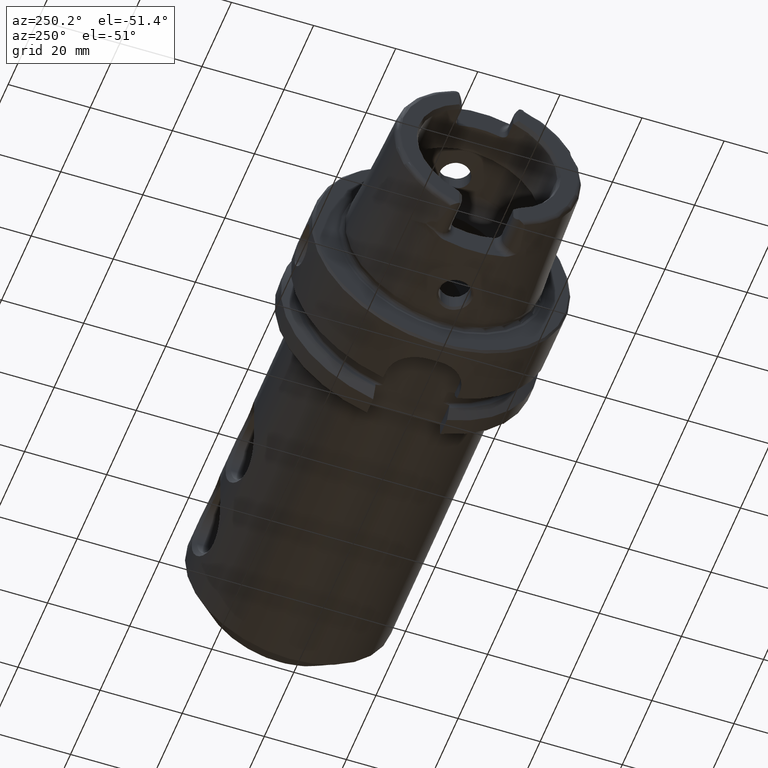
[diagram: clean part render]
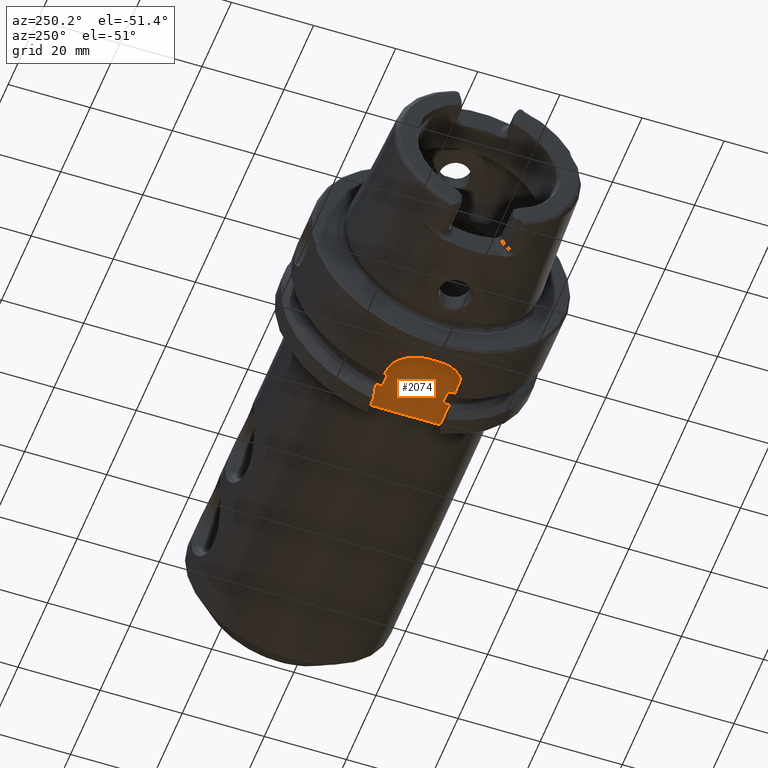
[diagram: same view with one face highlighted and labeled with its STEP entity id]
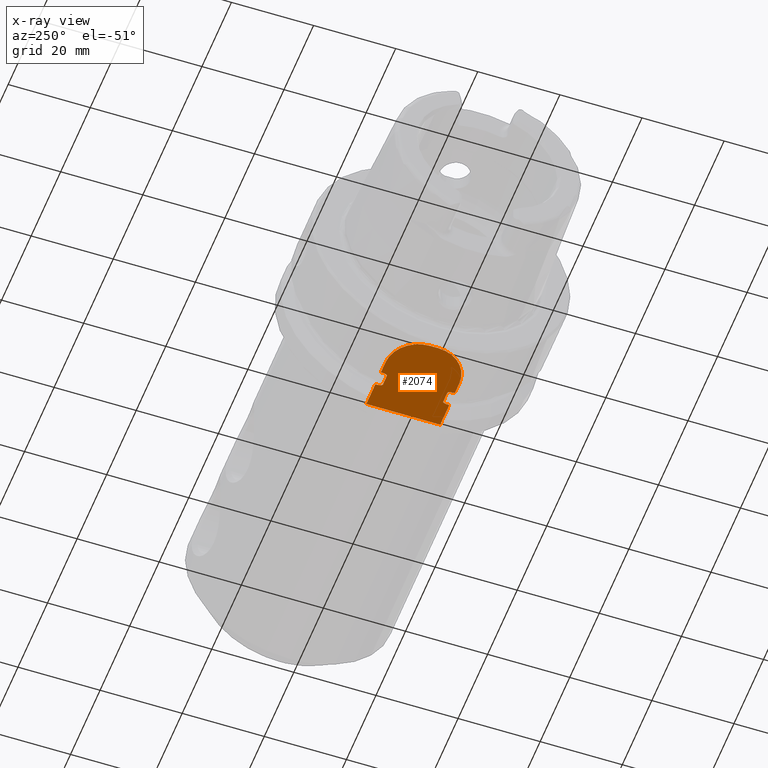
[diagram: x-ray of the same camera — body ghosted, the highlighted face saturated]
A machine part, auxiliary view. The second image highlights one B-rep face of the part: STEP entity #2074.
The next image is the same camera in x-ray: the body ghosted, the highlighted face saturated — about 0% of this face is hidden behind the body in this view.
In plain terms, the highlighted planar face has unit normal (0, 0, 1).
Its self-contained STEP definition (entity closure, byte-faithful):
#49=PLANE('',#2278);
#154=B_SPLINE_CURVE_WITH_KNOTS('',3,(#4488,#4489,#4490,#4491,#4492,#4493,
#4494,#4495,#4496,#4497),.UNSPECIFIED.,.F.,.F.,(4,2,2,2,4),(0.15835931245442,
0.289228035148658,0.316691561230897,0.323545183976989,0.328785692776271),
 .UNSPECIFIED.);
#155=B_SPLINE_CURVE_WITH_KNOTS('',3,(#4509,#4510,#4511,#4512,#4513,#4514,
#4515,#4516,#4517,#4518),.UNSPECIFIED.,.F.,.F.,(4,2,2,2,4),(0.328785692776271,
0.334026201575553,0.340879824321645,0.368343350403884,0.499212073098123),
 .UNSPECIFIED.);
#156=B_SPLINE_CURVE_WITH_KNOTS('',3,(#4521,#4522,#4523,#4524,#4525,#4526,
#4527,#4528,#4529,#4530),.UNSPECIFIED.,.F.,.F.,(4,2,2,2,4),(0.15835931245442,
0.289228035148658,0.316691561230897,0.323545183976988,0.32878569277627),
 .UNSPECIFIED.);
#157=B_SPLINE_CURVE_WITH_KNOTS('',3,(#4533,#4534,#4535,#4536,#4537,#4538,
#4539,#4540,#4541,#4542),.UNSPECIFIED.,.F.,.F.,(4,2,2,2,4),(0.32878569277627,
0.334026201575552,0.340879824321644,0.368343350403882,0.49921207309812),
 .UNSPECIFIED.);
#279=FACE_OUTER_BOUND('',#411,.T.);
#411=EDGE_LOOP('',(#1642,#1643,#1644,#1645,#1646,#1647,#1648,#1649,#1650,
#1651,#1652,#1653,#1654,#1655));
#546=LINE('',#4437,#658);
#550=LINE('',#4472,#662);
#553=LINE('',#4499,#665);
#554=LINE('',#4503,#666);
#555=LINE('',#4507,#667);
#556=LINE('',#4520,#668);
#557=LINE('',#4531,#669);
#558=LINE('',#4543,#670);
#658=VECTOR('',#2697,10.);
#662=VECTOR('',#2703,10.);
#665=VECTOR('',#2708,10.);
#666=VECTOR('',#2711,10.);
#667=VECTOR('',#2714,10.);
#668=VECTOR('',#2715,10.);
#669=VECTOR('',#2716,10.);
#670=VECTOR('',#2717,10.);
#764=CIRCLE('',#2279,8.);
#765=CIRCLE('',#2280,8.);
#958=VERTEX_POINT('',#4431);
#959=VERTEX_POINT('',#4436);
#965=VERTEX_POINT('',#4469);
#966=VERTEX_POINT('',#4471);
#970=VERTEX_POINT('',#4486);
#971=VERTEX_POINT('',#4487);
#972=VERTEX_POINT('',#4498);
#973=VERTEX_POINT('',#4500);
#974=VERTEX_POINT('',#4502);
#975=VERTEX_POINT('',#4504);
#976=VERTEX_POINT('',#4506);
#977=VERTEX_POINT('',#4508);
#978=VERTEX_POINT('',#4519);
#979=VERTEX_POINT('',#4532);
#1213=EDGE_CURVE('',#958,#959,#546,.T.);
#1220=EDGE_CURVE('',#965,#966,#550,.T.);
#1225=EDGE_CURVE('',#970,#971,#154,.T.);
#1226=EDGE_CURVE('',#972,#970,#553,.T.);
#1227=EDGE_CURVE('',#973,#972,#764,.T.);
#1228=EDGE_CURVE('',#974,#973,#554,.T.);
#1229=EDGE_CURVE('',#975,#974,#765,.T.);
#1230=EDGE_CURVE('',#976,#975,#555,.T.);
#1231=EDGE_CURVE('',#977,#976,#155,.T.);
#1232=EDGE_CURVE('',#978,#977,#556,.T.);
#1233=EDGE_CURVE('',#966,#978,#156,.T.);
#1234=EDGE_CURVE('',#959,#965,#557,.T.);
#1235=EDGE_CURVE('',#979,#958,#157,.T.);
#1236=EDGE_CURVE('',#971,#979,#558,.T.);
#1642=ORIENTED_EDGE('',*,*,#1225,.F.);
#1643=ORIENTED_EDGE('',*,*,#1226,.F.);
#1644=ORIENTED_EDGE('',*,*,#1227,.F.);
#1645=ORIENTED_EDGE('',*,*,#1228,.F.);
#1646=ORIENTED_EDGE('',*,*,#1229,.F.);
#1647=ORIENTED_EDGE('',*,*,#1230,.F.);
#1648=ORIENTED_EDGE('',*,*,#1231,.F.);
#1649=ORIENTED_EDGE('',*,*,#1232,.F.);
#1650=ORIENTED_EDGE('',*,*,#1233,.F.);
#1651=ORIENTED_EDGE('',*,*,#1220,.F.);
#1652=ORIENTED_EDGE('',*,*,#1234,.F.);
#1653=ORIENTED_EDGE('',*,*,#1213,.F.);
#1654=ORIENTED_EDGE('',*,*,#1235,.F.);
#1655=ORIENTED_EDGE('',*,*,#1236,.F.);
#2074=ADVANCED_FACE('',(#279),#49,.F.);
#2278=AXIS2_PLACEMENT_3D('',#4485,#2706,#2707);
#2279=AXIS2_PLACEMENT_3D('',#4501,#2709,#2710);
#2280=AXIS2_PLACEMENT_3D('',#4505,#2712,#2713);
#2697=DIRECTION('',(1.,-2.56205313375036E-16,0.));
#2703=DIRECTION('',(-1.,2.56205313375036E-16,0.));
#2706=DIRECTION('center_axis',(0.,0.,1.));
#2707=DIRECTION('ref_axis',(1.,0.,0.));
#2708=DIRECTION('',(1.,-2.56205313375036E-16,0.));
#2709=DIRECTION('center_axis',(0.,0.,1.));
#2710=DIRECTION('ref_axis',(-1.,-2.42861286636753E-16,0.));
#2711=DIRECTION('',(0.,-1.,0.));
#2712=DIRECTION('center_axis',(0.,0.,1.));
#2713=DIRECTION('ref_axis',(0.,1.,0.));
#2714=DIRECTION('',(-1.,2.56205313375036E-16,0.));
#2715=DIRECTION('',(-1.,0.,0.));
#2716=DIRECTION('',(0.,1.,0.));
#2717=DIRECTION('',(1.,0.,0.));
#4431=CARTESIAN_POINT('',(19.8748205133158,-9.,-26.5));
#4436=CARTESIAN_POINT('',(26.,-9.,-26.5));
#4437=CARTESIAN_POINT('',(13.,-9.,-26.5));
#4469=CARTESIAN_POINT('',(26.,9.,-26.5));
#4471=CARTESIAN_POINT('',(19.8748205133158,9.,-26.5));
#4472=CARTESIAN_POINT('',(26.,9.,-26.5));
#4485=CARTESIAN_POINT('Origin',(15.5,3.88578058618805E-15,-26.5));
#4486=CARTESIAN_POINT('',(16.1251794866842,-9.,-26.5));
#4487=CARTESIAN_POINT('',(16.625,-7.34846922834952,-26.5));
#4488=CARTESIAN_POINT('Ctrl Pts',(16.1251794866842,-9.,-26.5));
#4489=CARTESIAN_POINT('Ctrl Pts',(16.12898241235,-8.55877260788573,-26.5));
#4490=CARTESIAN_POINT('Ctrl Pts',(16.1819334034884,-8.04136347440828,-26.5));
#4491=CARTESIAN_POINT('Ctrl Pts',(16.3906456489289,-7.5566112023157,-26.5));
#4492=CARTESIAN_POINT('Ctrl Pts',(16.4411490019356,-7.4590543697872,-26.5));
#4493=CARTESIAN_POINT('Ctrl Pts',(16.5270295504762,-7.38349170057081,-26.5));
#4494=CARTESIAN_POINT('Ctrl Pts',(16.5496994821687,-7.36807649661538,-26.5));
#4495=CARTESIAN_POINT('Ctrl Pts',(16.587038394856,-7.35287762173868,-26.5));
#4496=CARTESIAN_POINT('Ctrl Pts',(16.6075316373357,-7.34846922834952,-26.5));
#4497=CARTESIAN_POINT('Ctrl Pts',(16.625,-7.34846922834952,-26.5));
#4498=CARTESIAN_POINT('',(13.,-9.,-26.5));
#4499=CARTESIAN_POINT('',(13.,-9.,-26.5));
#4500=CARTESIAN_POINT('',(5.,-0.999999999999999,-26.5));
#4501=CARTESIAN_POINT('Origin',(13.,-0.999999999999997,-26.5));
#4502=CARTESIAN_POINT('',(5.,1.,-26.5));
#4503=CARTESIAN_POINT('',(5.,1.,-26.5));
#4504=CARTESIAN_POINT('',(13.,9.00000000000001,-26.5));
#4505=CARTESIAN_POINT('Origin',(13.,1.,-26.5));
#4506=CARTESIAN_POINT('',(16.1251794866842,9.,-26.5));
#4507=CARTESIAN_POINT('',(26.,9.,-26.5));
#4508=CARTESIAN_POINT('',(16.625,7.34846922834952,-26.5));
#4509=CARTESIAN_POINT('Ctrl Pts',(16.625,7.34846922834952,-26.5));
#4510=CARTESIAN_POINT('Ctrl Pts',(16.6075316373357,7.34846922834952,-26.5));
#4511=CARTESIAN_POINT('Ctrl Pts',(16.587038394856,7.35287762173868,-26.5));
#4512=CARTESIAN_POINT('Ctrl Pts',(16.5496994821687,7.36807649661538,-26.5));
#4513=CARTESIAN_POINT('Ctrl Pts',(16.5270295504762,7.38349170057081,-26.5));
#4514=CARTESIAN_POINT('Ctrl Pts',(16.4411490019356,7.4590543697872,-26.5));
#4515=CARTESIAN_POINT('Ctrl Pts',(16.3906456489289,7.5566112023157,-26.5));
#4516=CARTESIAN_POINT('Ctrl Pts',(16.1819334034884,8.04136347440828,-26.5));
#4517=CARTESIAN_POINT('Ctrl Pts',(16.12898241235,8.55877260788573,-26.5));
#4518=CARTESIAN_POINT('Ctrl Pts',(16.1251794866842,9.,-26.5));
#4519=CARTESIAN_POINT('',(19.375,7.34846922834952,-26.5));
#4520=CARTESIAN_POINT('',(18.,7.34846922834952,-26.5));
#4521=CARTESIAN_POINT('Ctrl Pts',(19.8748205133158,9.,-26.5));
#4522=CARTESIAN_POINT('Ctrl Pts',(19.87101758765,8.55877260788573,-26.5));
#4523=CARTESIAN_POINT('Ctrl Pts',(19.8180665965116,8.04136347440828,-26.5));
#4524=CARTESIAN_POINT('Ctrl Pts',(19.6093543510711,7.5566112023157,-26.5));
#4525=CARTESIAN_POINT('Ctrl Pts',(19.5588509980644,7.45905436978719,-26.5));
#4526=CARTESIAN_POINT('Ctrl Pts',(19.4729704495238,7.38349170057082,-26.5));
#4527=CARTESIAN_POINT('Ctrl Pts',(19.4503005178313,7.3680764966154,-26.5));
#4528=CARTESIAN_POINT('Ctrl Pts',(19.412961605144,7.35287762173869,-26.5));
#4529=CARTESIAN_POINT('Ctrl Pts',(19.3924683626643,7.34846922834952,-26.5));
#4530=CARTESIAN_POINT('Ctrl Pts',(19.375,7.34846922834952,-26.5));
#4531=CARTESIAN_POINT('',(26.,1.94289029309402E-15,-26.5));
#4532=CARTESIAN_POINT('',(19.375,-7.34846922834952,-26.5));
#4533=CARTESIAN_POINT('Ctrl Pts',(19.375,-7.34846922834952,-26.5));
#4534=CARTESIAN_POINT('Ctrl Pts',(19.3924683626643,-7.34846922834952,-26.5));
#4535=CARTESIAN_POINT('Ctrl Pts',(19.412961605144,-7.35287762173869,-26.5));
#4536=CARTESIAN_POINT('Ctrl Pts',(19.4503005178313,-7.3680764966154,-26.5));
#4537=CARTESIAN_POINT('Ctrl Pts',(19.4729704495238,-7.38349170057082,-26.5));
#4538=CARTESIAN_POINT('Ctrl Pts',(19.5588509980644,-7.45905436978719,-26.5));
#4539=CARTESIAN_POINT('Ctrl Pts',(19.6093543510711,-7.5566112023157,-26.5));
#4540=CARTESIAN_POINT('Ctrl Pts',(19.8180665965116,-8.04136347440828,-26.5));
#4541=CARTESIAN_POINT('Ctrl Pts',(19.87101758765,-8.55877260788573,-26.5));
#4542=CARTESIAN_POINT('Ctrl Pts',(19.8748205133158,-9.,-26.5));
#4543=CARTESIAN_POINT('',(18.,-7.34846922834952,-26.5));